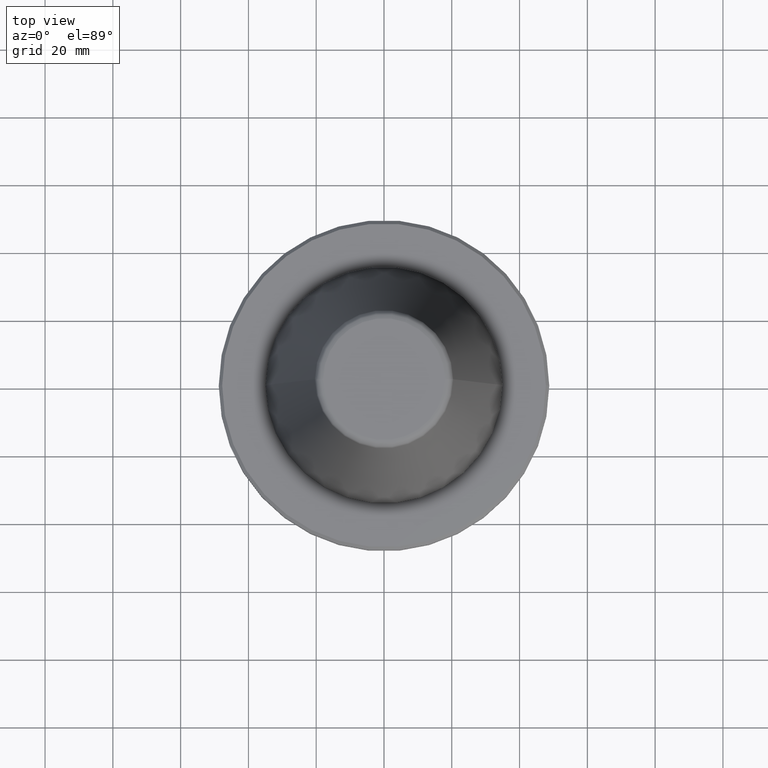
[diagram: clean part render]
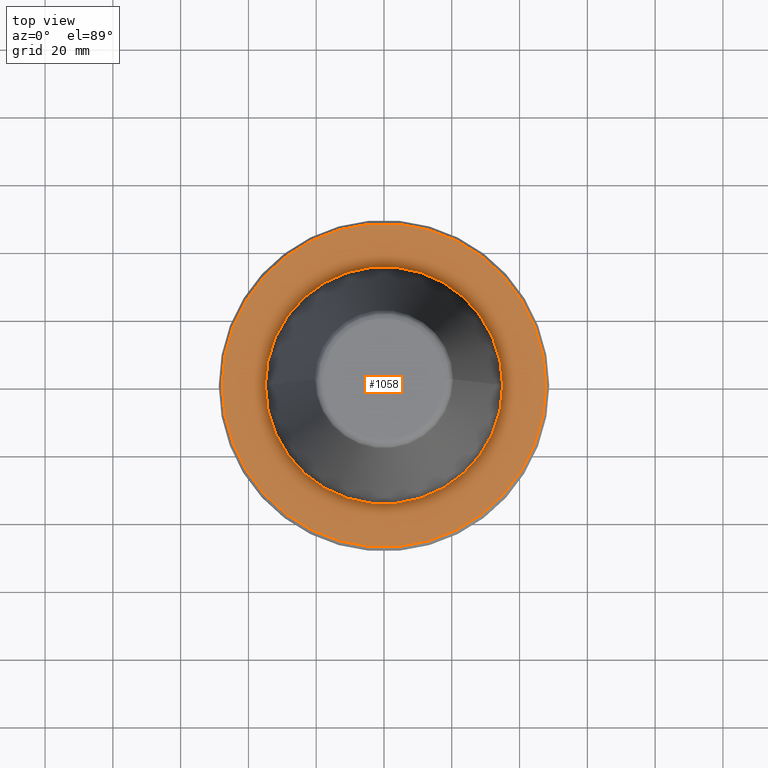
[diagram: same view with one face highlighted and labeled with its STEP entity id]
A machine part, top view. The second image highlights one B-rep face of the part: STEP entity #1058.
In plain terms, the highlighted planar face has unit normal (0, 0, -1).
Its self-contained STEP definition (entity closure, byte-faithful):
#5 = DIRECTION ( 'NONE',  ( 1.000000000000000000, 0.0000000000000000000, 0.0000000000000000000 ) ) ;
#9 = DIRECTION ( 'NONE',  ( -0.0000000000000000000, -0.0000000000000000000, 1.000000000000000000 ) ) ;
#52 = EDGE_CURVE ( 'NONE', #693, #541, #1026, .T. ) ;
#74 = DIRECTION ( 'NONE',  ( 1.000000000000000000, 0.0000000000000000000, 0.0000000000000000000 ) ) ;
#82 = FACE_OUTER_BOUND ( 'NONE', #698, .T. ) ;
#125 = CIRCLE ( 'NONE', #686, 47.75000000000018500 ) ;
#128 = CARTESIAN_POINT ( 'NONE',  ( 0.0000000000000000000, 0.0000000000000000000, -3.199999999999869600 ) ) ;
#135 = CARTESIAN_POINT ( 'NONE',  ( 47.75000000000018500, 5.908920805885994600E-015, -3.199999999999869600 ) ) ;
#302 = CARTESIAN_POINT ( 'NONE',  ( 0.0000000000000000000, 0.0000000000000000000, -3.199999999999869600 ) ) ;
#305 = EDGE_CURVE ( 'NONE', #541, #693, #125, .T. ) ;
#317 = EDGE_CURVE ( 'NONE', #702, #1250, #1107, .T. ) ;
#349 = AXIS2_PLACEMENT_3D ( 'NONE', #302, #989, #74 ) ;
#386 = AXIS2_PLACEMENT_3D ( 'NONE', #592, #1060, #987 ) ;
#474 = ORIENTED_EDGE ( 'NONE', *, *, #843, .F. ) ;
#532 = DIRECTION ( 'NONE',  ( 1.000000000000000000, 0.0000000000000000000, 0.0000000000000000000 ) ) ;
#535 = FACE_BOUND ( 'NONE', #713, .T. ) ;
#541 = VERTEX_POINT ( 'NONE', #717 ) ;
#574 = ORIENTED_EDGE ( 'NONE', *, *, #317, .F. ) ;
#582 = AXIS2_PLACEMENT_3D ( 'NONE', #1183, #632, #845 ) ;
#592 = CARTESIAN_POINT ( 'NONE',  ( 0.0000000000000000000, 0.0000000000000000000, -3.199999999999869600 ) ) ;
#599 = ORIENTED_EDGE ( 'NONE', *, *, #305, .T. ) ;
#612 = ORIENTED_EDGE ( 'NONE', *, *, #52, .T. ) ;
#632 = DIRECTION ( 'NONE',  ( 0.0000000000000000000, 0.0000000000000000000, -1.000000000000000000 ) ) ;
#686 = AXIS2_PLACEMENT_3D ( 'NONE', #128, #746, #5 ) ;
#693 = VERTEX_POINT ( 'NONE', #135 ) ;
#698 = EDGE_LOOP ( 'NONE', ( #599, #612 ) ) ;
#702 = VERTEX_POINT ( 'NONE', #744 ) ;
#713 = EDGE_LOOP ( 'NONE', ( #574, #474 ) ) ;
#717 = CARTESIAN_POINT ( 'NONE',  ( -47.75000000000018500, 0.0000000000000000000, -3.199999999999869600 ) ) ;
#744 = CARTESIAN_POINT ( 'NONE',  ( 35.00000000000002800, 0.0000000000000000000, -3.199999999999869600 ) ) ;
#746 = DIRECTION ( 'NONE',  ( -0.0000000000000000000, -0.0000000000000000000, 1.000000000000000000 ) ) ;
#807 = AXIS2_PLACEMENT_3D ( 'NONE', #967, #9, #532 ) ;
#837 = CIRCLE ( 'NONE', #349, 35.00000000000002800 ) ;
#843 = EDGE_CURVE ( 'NONE', #1250, #702, #837, .T. ) ;
#845 = DIRECTION ( 'NONE',  ( -1.000000000000000000, 0.0000000000000000000, -0.0000000000000000000 ) ) ;
#908 = PLANE ( 'NONE',  #582 ) ;
#967 = CARTESIAN_POINT ( 'NONE',  ( 0.0000000000000000000, 0.0000000000000000000, -3.199999999999869600 ) ) ;
#987 = DIRECTION ( 'NONE',  ( 1.000000000000000000, 0.0000000000000000000, 0.0000000000000000000 ) ) ;
#989 = DIRECTION ( 'NONE',  ( -0.0000000000000000000, -0.0000000000000000000, 1.000000000000000000 ) ) ;
#1026 = CIRCLE ( 'NONE', #386, 47.75000000000018500 ) ;
#1058 = ADVANCED_FACE ( 'NONE', ( #535, #82 ), #908, .F. ) ;
#1060 = DIRECTION ( 'NONE',  ( -0.0000000000000000000, -0.0000000000000000000, 1.000000000000000000 ) ) ;
#1107 = CIRCLE ( 'NONE', #807, 35.00000000000002800 ) ;
#1183 = CARTESIAN_POINT ( 'NONE',  ( 0.0000000000000000000, 47.75000000000018500, -3.199999999999869600 ) ) ;
#1194 = CARTESIAN_POINT ( 'NONE',  ( -35.00000000000002800, 4.286263797015739700E-015, -3.199999999999869600 ) ) ;
#1250 = VERTEX_POINT ( 'NONE', #1194 ) ;